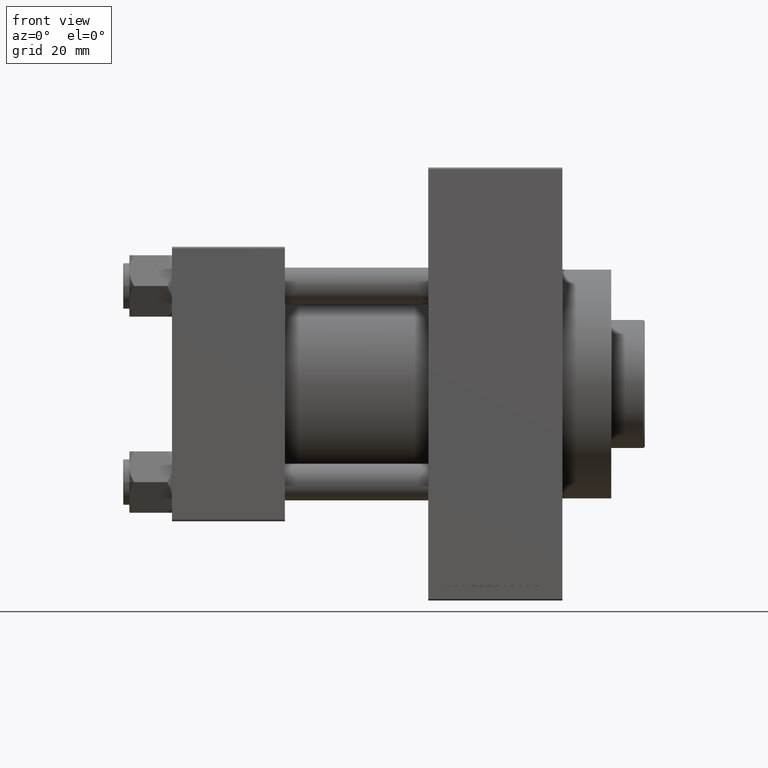
[diagram: clean part render]
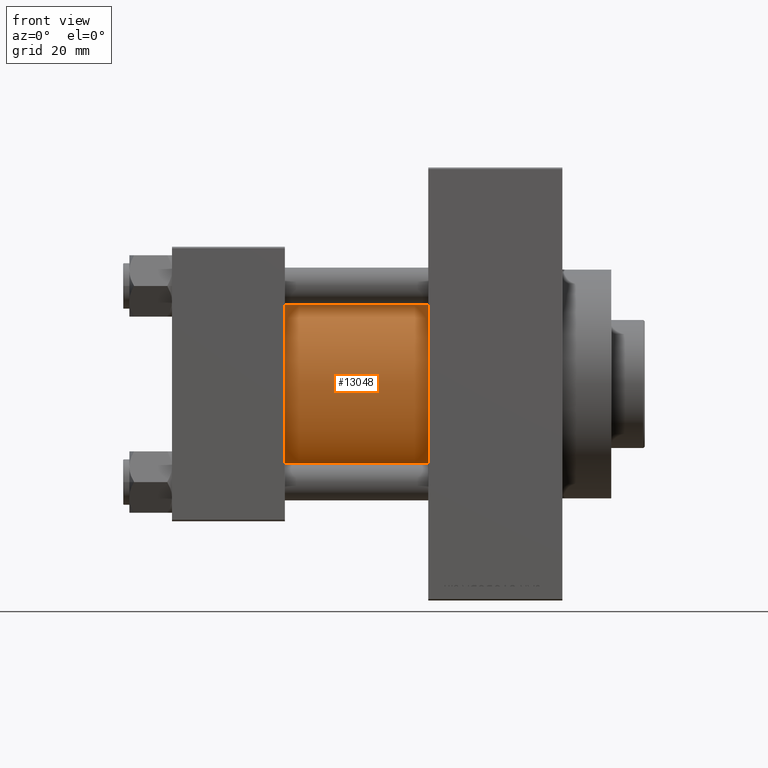
[diagram: same view with one face highlighted and labeled with its STEP entity id]
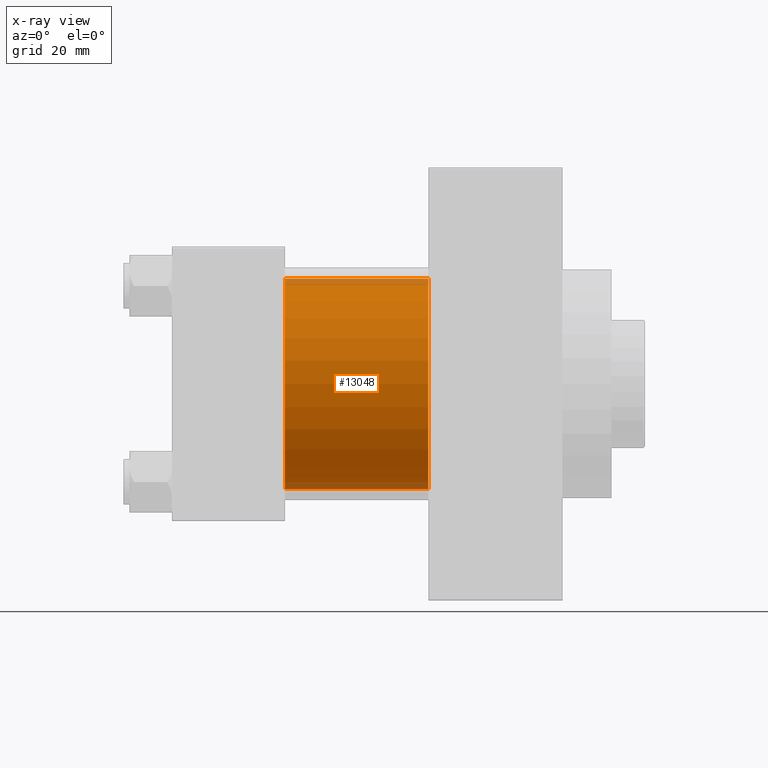
[diagram: x-ray of the same camera — body ghosted, the highlighted face saturated]
A machine part, front view. The second image highlights one B-rep face of the part: STEP entity #13048.
The next image is the same camera in x-ray: the body ghosted, the highlighted face saturated — about 7% of this face is hidden behind the body in this view.
In plain terms, the highlighted cylindrical surface (partial cylindrical patch) has radius 34.5 mm, axis along (-1, -0, -0).
Its self-contained STEP definition (entity closure, byte-faithful):
#1502 = ORIENTED_EDGE ( 'NONE', *, *, #36815, .F. ) ;
#1550 = DIRECTION ( 'NONE',  ( -1.000000000000000000, -0.000000000000000000, -0.000000000000000000 ) ) ;
#2019 = CYLINDRICAL_SURFACE ( 'NONE', #14284, 34.50000000000000000 ) ;
#3996 = DIRECTION ( 'NONE',  ( 1.000000000000000000, -0.000000000000000000, 0.000000000000000000 ) ) ;
#4329 = EDGE_CURVE ( 'NONE', #9521, #33021, #27426, .T. ) ;
#5245 = LINE ( 'NONE', #19336, #26384 ) ;
#9221 = CIRCLE ( 'NONE', #32094, 34.50000000000000000 ) ;
#9521 = VERTEX_POINT ( 'NONE', #21761 ) ;
#10032 = CIRCLE ( 'NONE', #14497, 34.50000000000000000 ) ;
#12084 = ORIENTED_EDGE ( 'NONE', *, *, #4329, .F. ) ;
#13048 = ADVANCED_FACE ( 'NONE', ( #16563 ), #2019, .T. ) ;
#14284 = AXIS2_PLACEMENT_3D ( 'NONE', #27767, #1550, #38528 ) ;
#14497 = AXIS2_PLACEMENT_3D ( 'NONE', #29524, #3996, #21665 ) ;
#16270 = DIRECTION ( 'NONE',  ( 0.000000000000000000, 0.000000000000000000, -1.000000000000000000 ) ) ;
#16563 = FACE_OUTER_BOUND ( 'NONE', #40511, .T. ) ;
#18715 = VECTOR ( 'NONE', #34838, 1000.000000000000000 ) ;
#19336 = CARTESIAN_POINT ( 'NONE',  ( 83.99999999999998579, -2.602085213965210642E-15, 34.50000000000000000 ) ) ;
#20762 = CARTESIAN_POINT ( 'NONE',  ( 83.99999999999998579, -2.602085213965210642E-15, 34.50000000000000000 ) ) ;
#21665 = DIRECTION ( 'NONE',  ( 0.000000000000000000, 0.000000000000000000, 1.000000000000000000 ) ) ;
#21761 = CARTESIAN_POINT ( 'NONE',  ( 83.99999999999998579, 1.622946243093158675E-15, -34.50000000000000000 ) ) ;
#22960 = DIRECTION ( 'NONE',  ( 1.000000000000000000, 0.000000000000000000, 0.000000000000000000 ) ) ;
#25721 = CARTESIAN_POINT ( 'NONE',  ( 37.00000000000000000, 1.622946243093158675E-15, -34.50000000000000000 ) ) ;
#26035 = EDGE_CURVE ( 'NONE', #45997, #31941, #5245, .T. ) ;
#26384 = VECTOR ( 'NONE', #41783, 1000.000000000000000 ) ;
#27426 = LINE ( 'NONE', #34602, #18715 ) ;
#27767 = CARTESIAN_POINT ( 'NONE',  ( 83.99999999999998579, -2.602085213965210642E-15, 0.000000000000000000 ) ) ;
#29524 = CARTESIAN_POINT ( 'NONE',  ( 37.00000000000000000, -2.602085213965210642E-15, 0.000000000000000000 ) ) ;
#31941 = VERTEX_POINT ( 'NONE', #37625 ) ;
#32094 = AXIS2_PLACEMENT_3D ( 'NONE', #45175, #22960, #16270 ) ;
#33021 = VERTEX_POINT ( 'NONE', #25721 ) ;
#34602 = CARTESIAN_POINT ( 'NONE',  ( 83.99999999999998579, 1.622946243093158675E-15, -34.50000000000000000 ) ) ;
#34838 = DIRECTION ( 'NONE',  ( -1.000000000000000000, -0.000000000000000000, -0.000000000000000000 ) ) ;
#36815 = EDGE_CURVE ( 'NONE', #45997, #9521, #9221, .T. ) ;
#36974 = ORIENTED_EDGE ( 'NONE', *, *, #26035, .T. ) ;
#37625 = CARTESIAN_POINT ( 'NONE',  ( 37.00000000000000000, -2.602085213965210642E-15, 34.50000000000000000 ) ) ;
#38528 = DIRECTION ( 'NONE',  ( 0.000000000000000000, 0.000000000000000000, 1.000000000000000000 ) ) ;
#38975 = EDGE_CURVE ( 'NONE', #31941, #33021, #10032, .T. ) ;
#40511 = EDGE_LOOP ( 'NONE', ( #12084, #1502, #36974, #42082 ) ) ;
#41783 = DIRECTION ( 'NONE',  ( -1.000000000000000000, -0.000000000000000000, -0.000000000000000000 ) ) ;
#42082 = ORIENTED_EDGE ( 'NONE', *, *, #38975, .T. ) ;
#45175 = CARTESIAN_POINT ( 'NONE',  ( 83.99999999999998579, -2.602085213965210642E-15, 0.000000000000000000 ) ) ;
#45997 = VERTEX_POINT ( 'NONE', #20762 ) ;